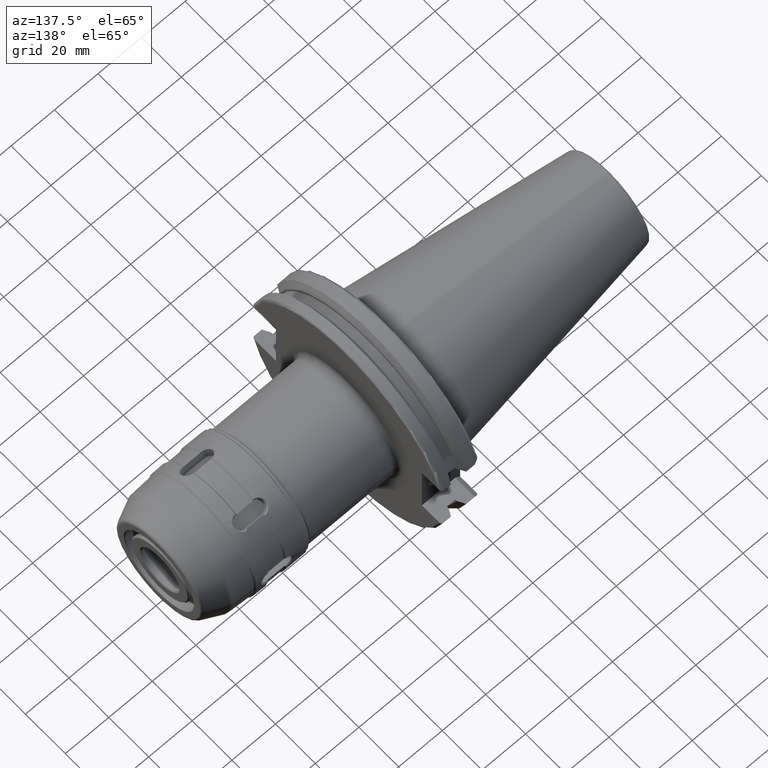
[diagram: clean part render]
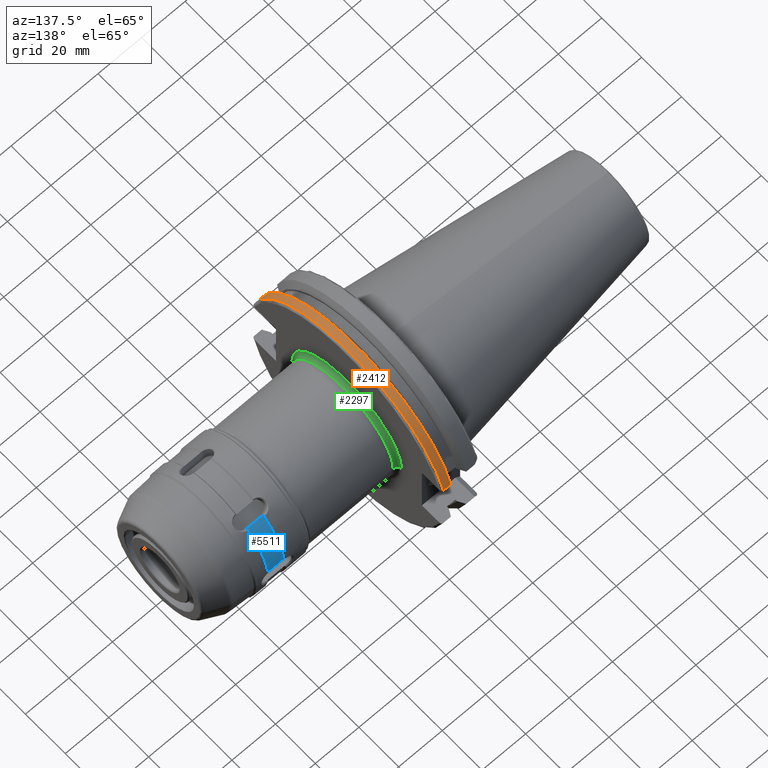
[diagram: same view with three faces highlighted in distinct colors, each labeled with its STEP entity id]
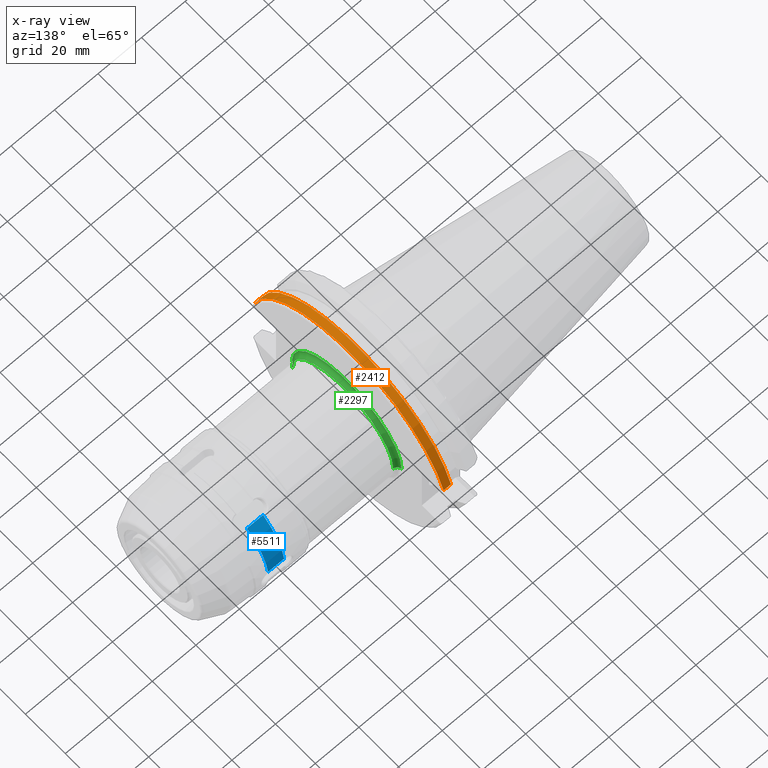
[diagram: x-ray of the same camera — body ghosted, the three highlighted faces saturated]
A machine part, auxiliary view with three faces highlighted in distinct colors.
The next image is the same camera in x-ray (body ghosted, the three faces saturated) — at least one of them is partly hidden behind the body in this view.
Their STEP definitions:

[orange] entity #2412 — the highlighted cylindrical surface (partial cylindrical patch) has radius 49.1998 mm, axis along (1, 0, 0).
#660=DIRECTION('',(1.E0,0.E0,0.E0));
#661=VECTOR('',#660,1.340688206583E-1);
#662=CARTESIAN_POINT('',(5.769311793417E-1,-1.868654328655E0,5.1E-1));
#663=LINE('',#662,#661);
#664=DIRECTION('',(1.E0,0.E0,0.E0));
#665=VECTOR('',#664,1.340688206583E-1);
#666=CARTESIAN_POINT('',(5.769311793417E-1,1.868654328655E0,5.1E-1));
#667=LINE('',#666,#665);
#740=CARTESIAN_POINT('',(7.11E-1,0.E0,0.E0));
#741=DIRECTION('',(-1.E0,0.E0,0.E0));
#742=DIRECTION('',(0.E0,-9.647157091661E-1,2.632937532266E-1));
#743=AXIS2_PLACEMENT_3D('',#740,#741,#742);
#871=CARTESIAN_POINT('',(5.769311793417E-1,-1.868654328655E0,5.1E-1));
#878=CARTESIAN_POINT('',(5.769311793417E-1,1.868654328655E0,5.1E-1));
#885=CARTESIAN_POINT('',(5.769311793417E-1,0.E0,0.E0));
#886=DIRECTION('',(1.E0,0.E0,0.E0));
#887=DIRECTION('',(0.E0,9.647157091661E-1,2.632937532266E-1));
#888=AXIS2_PLACEMENT_3D('',#885,#886,#887);
#1156=VERTEX_POINT('',#878);
#1178=VERTEX_POINT('',#871);
#1204=CARTESIAN_POINT('',(7.11E-1,-1.868654328655E0,5.1E-1));
#1205=CARTESIAN_POINT('',(7.11E-1,1.868654328655E0,5.1E-1));
#1206=VERTEX_POINT('',#1204);
#1207=VERTEX_POINT('',#1205);
#2397=CARTESIAN_POINT('',(0.E0,0.E0,0.E0));
#2398=DIRECTION('',(1.E0,0.E0,0.E0));
#2399=DIRECTION('',(0.E0,0.E0,1.E0));
#2400=AXIS2_PLACEMENT_3D('',#2397,#2398,#2399);
#2401=CYLINDRICAL_SURFACE('',#2400,1.937E0);
#2403=ORIENTED_EDGE('',*,*,#2402,.F.);
#2405=ORIENTED_EDGE('',*,*,#2404,.F.);
#2407=ORIENTED_EDGE('',*,*,#2406,.F.);
#2409=ORIENTED_EDGE('',*,*,#2408,.T.);
#2410=EDGE_LOOP('',(#2403,#2405,#2407,#2409));
#2411=FACE_OUTER_BOUND('',#2410,.F.);
#2412=ADVANCED_FACE('',(#2411),#2401,.T.);
#744=CIRCLE('',#743,1.937E0);
#889=CIRCLE('',#888,1.937E0);
#2402=EDGE_CURVE('',#1206,#1207,#744,.T.);
#2404=EDGE_CURVE('',#1178,#1206,#663,.T.);
#2406=EDGE_CURVE('',#1156,#1178,#889,.T.);
#2408=EDGE_CURVE('',#1156,#1207,#667,.T.);

[blue] entity #5511 — the highlighted cylindrical surface (partial cylindrical patch) has radius 26.5 mm, axis along (1, 0, 0).
#3266=DIRECTION('',(1.E0,0.E0,0.E0));
#3267=VECTOR('',#3266,7.4E0);
#3268=CARTESIAN_POINT('',(-3.35E1,1.576289675703E1,2.130213805765E1));
#3269=LINE('',#3268,#3267);
#3270=DIRECTION('',(1.E0,0.E0,0.E0));
#3271=VECTOR('',#3270,7.4E0);
#3272=CARTESIAN_POINT('',(-3.35E1,2.632964109136E1,3.E0));
#3273=LINE('',#3272,#3271);
#3598=CARTESIAN_POINT('',(-2.61E1,0.E0,0.E0));
#3599=DIRECTION('',(-1.E0,0.E0,0.E0));
#3600=DIRECTION('',(0.E0,5.948262927183E-1,8.038542663263E-1));
#3601=AXIS2_PLACEMENT_3D('',#3598,#3599,#3600);
#4051=CARTESIAN_POINT('',(-3.35E1,0.E0,0.E0));
#4052=DIRECTION('',(1.E0,0.E0,0.E0));
#4053=DIRECTION('',(0.E0,9.935713619382E-1,1.132075471698E-1));
#4054=AXIS2_PLACEMENT_3D('',#4051,#4052,#4053);
#4878=CARTESIAN_POINT('',(-3.35E1,2.632964109136E1,3.E0));
#4879=CARTESIAN_POINT('',(-2.61E1,2.632964109136E1,3.E0));
#4880=VERTEX_POINT('',#4878);
#4881=VERTEX_POINT('',#4879);
#4898=CARTESIAN_POINT('',(-3.35E1,1.576289675703E1,2.130213805765E1));
#4899=CARTESIAN_POINT('',(-2.61E1,1.576289675703E1,2.130213805765E1));
#4900=VERTEX_POINT('',#4898);
#4901=VERTEX_POINT('',#4899);
#5496=CARTESIAN_POINT('',(0.E0,0.E0,0.E0));
#5497=DIRECTION('',(1.E0,0.E0,0.E0));
#5498=DIRECTION('',(0.E0,-1.E0,0.E0));
#5499=AXIS2_PLACEMENT_3D('',#5496,#5497,#5498);
#5500=CYLINDRICAL_SURFACE('',#5499,2.65E1);
#5502=ORIENTED_EDGE('',*,*,#5501,.F.);
#5504=ORIENTED_EDGE('',*,*,#5503,.F.);
#5506=ORIENTED_EDGE('',*,*,#5505,.T.);
#5508=ORIENTED_EDGE('',*,*,#5507,.F.);
#5509=EDGE_LOOP('',(#5502,#5504,#5506,#5508));
#5510=FACE_OUTER_BOUND('',#5509,.F.);
#5511=ADVANCED_FACE('',(#5510),#5500,.T.);
#3602=CIRCLE('',#3601,2.65E1);
#4055=CIRCLE('',#4054,2.65E1);
#5501=EDGE_CURVE('',#4900,#4901,#3269,.T.);
#5503=EDGE_CURVE('',#4880,#4900,#4055,.T.);
#5505=EDGE_CURVE('',#4880,#4881,#3273,.T.);
#5507=EDGE_CURVE('',#4901,#4881,#3602,.T.);

[green] entity #2297 — the highlighted toroidal blend (fillet) surface has major radius 27.5082 mm and minor (blend) radius 2.0066 mm.
#557=CARTESIAN_POINT('',(8.29E-1,0.E0,0.E0));
#558=DIRECTION('',(1.E0,0.E0,0.E0));
#559=DIRECTION('',(0.E0,1.E0,0.E0));
#560=AXIS2_PLACEMENT_3D('',#557,#558,#559);
#567=CARTESIAN_POINT('',(8.29E-1,1.083E0,-1.589006703995E-14));
#568=DIRECTION('',(0.E0,1.467055643634E-14,1.E0));
#569=DIRECTION('',(-1.E0,-2.670156641504E-13,0.E0));
#570=AXIS2_PLACEMENT_3D('',#567,#568,#569);
#596=CARTESIAN_POINT('',(7.5E-1,0.E0,0.E0));
#597=DIRECTION('',(1.E0,0.E0,0.E0));
#598=DIRECTION('',(0.E0,1.E0,0.E0));
#599=AXIS2_PLACEMENT_3D('',#596,#597,#598);
#1104=CARTESIAN_POINT('',(8.29E-1,-1.083E0,1.527250548250E-14));
#1105=DIRECTION('',(0.E0,-1.410503658317E-14,-1.E0));
#1106=DIRECTION('',(-1.E0,2.613942817472E-13,0.E0));
#1107=AXIS2_PLACEMENT_3D('',#1104,#1105,#1106);
#1270=CARTESIAN_POINT('',(7.5E-1,1.083E0,0.E0));
#1271=CARTESIAN_POINT('',(7.5E-1,-1.083E0,0.E0));
#1272=VERTEX_POINT('',#1270);
#1273=VERTEX_POINT('',#1271);
#1274=CARTESIAN_POINT('',(8.29E-1,1.004E0,0.E0));
#1275=CARTESIAN_POINT('',(8.29E-1,-1.004E0,0.E0));
#1276=VERTEX_POINT('',#1274);
#1277=VERTEX_POINT('',#1275);
#2283=CARTESIAN_POINT('',(8.29E-1,0.E0,0.E0));
#2284=DIRECTION('',(1.E0,0.E0,0.E0));
#2285=DIRECTION('',(0.E0,9.998878266988E-1,-1.497778420138E-2));
#2286=AXIS2_PLACEMENT_3D('',#2283,#2284,#2285);
#2287=TOROIDAL_SURFACE('',#2286,1.083E0,7.9E-2);
#2289=ORIENTED_EDGE('',*,*,#2288,.F.);
#2291=ORIENTED_EDGE('',*,*,#2290,.T.);
#2292=ORIENTED_EDGE('',*,*,#2265,.T.);
#2294=ORIENTED_EDGE('',*,*,#2293,.F.);
#2295=EDGE_LOOP('',(#2289,#2291,#2292,#2294));
#2296=FACE_OUTER_BOUND('',#2295,.F.);
#2297=ADVANCED_FACE('',(#2296),#2287,.F.);
#561=CIRCLE('',#560,1.004E0);
#571=CIRCLE('',#570,7.9E-2);
#600=CIRCLE('',#599,1.083E0);
#1108=CIRCLE('',#1107,7.9E-2);
#2265=EDGE_CURVE('',#1276,#1277,#561,.T.);
#2288=EDGE_CURVE('',#1272,#1273,#600,.T.);
#2290=EDGE_CURVE('',#1272,#1276,#571,.T.);
#2293=EDGE_CURVE('',#1273,#1277,#1108,.T.);